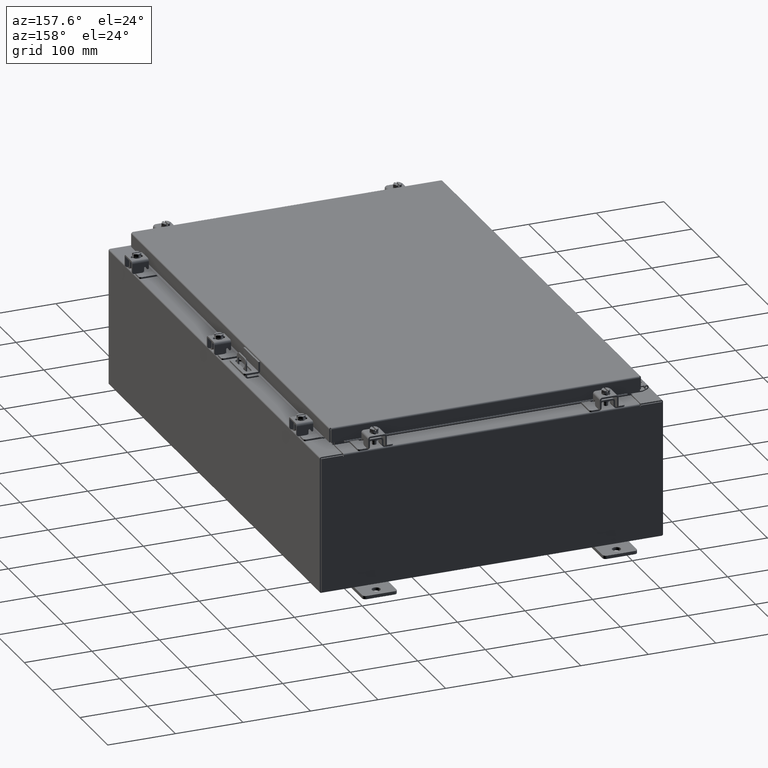
[diagram: clean part render]
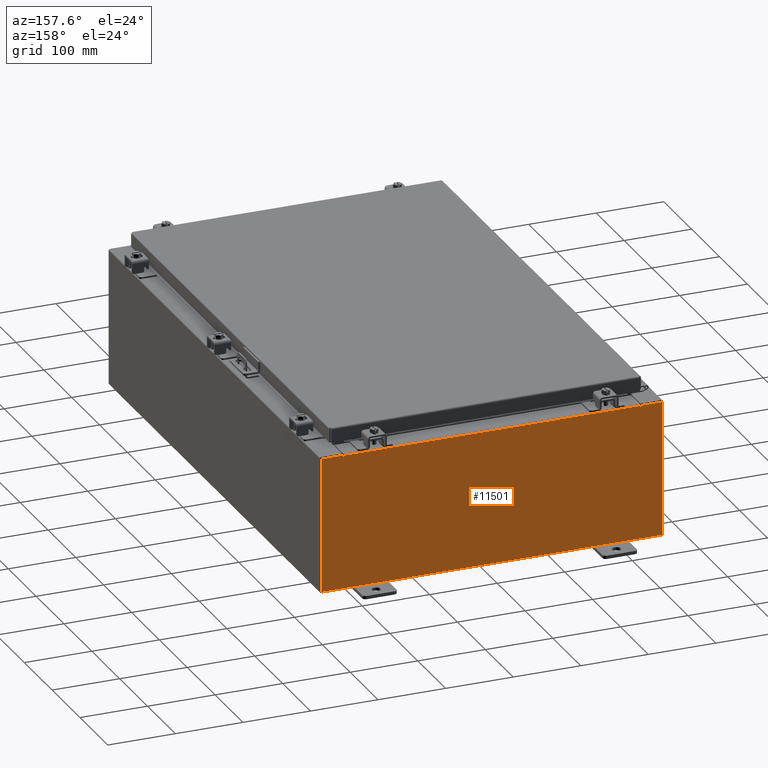
[diagram: same view with one face highlighted and labeled with its STEP entity id]
A machine part, auxiliary view. The second image highlights one B-rep face of the part: STEP entity #11501.
In plain terms, the highlighted planar face has unit normal (0, -1, 0).
Its self-contained STEP definition (entity closure, byte-faithful):
#79 = CARTESIAN_POINT ( 'NONE',  ( -8.674549999999996400, 0.0000000000000000000, 3.925299999999999600 ) ) ;
#361 = CARTESIAN_POINT ( 'NONE',  ( -8.655874999999996400, 0.0000000000000000000, 3.874949999999999700 ) ) ;
#710 = ORIENTED_EDGE ( 'NONE', *, *, #9132, .T. ) ;
#1230 = DIRECTION ( 'NONE',  ( 0.0000000000000000000, -1.000000000000000000, 0.0000000000000000000 ) ) ;
#1837 = DIRECTION ( 'NONE',  ( 0.0000000000000000000, 0.0000000000000000000, -1.000000000000000000 ) ) ;
#2175 = ORIENTED_EDGE ( 'NONE', *, *, #28482, .F. ) ;
#2310 = LINE ( 'NONE', #8712, #31241 ) ;
#2546 = ORIENTED_EDGE ( 'NONE', *, *, #22223, .T. ) ;
#2910 = VERTEX_POINT ( 'NONE', #14391 ) ;
#3136 = DIRECTION ( 'NONE',  ( 1.000000000000000000, 0.0000000000000000000, 0.0000000000000000000 ) ) ;
#3230 = DIRECTION ( 'NONE',  ( 0.0000000000000000000, 0.0000000000000000000, -1.000000000000000000 ) ) ;
#3515 = VERTEX_POINT ( 'NONE', #9946 ) ;
#3540 = EDGE_CURVE ( 'NONE', #3608, #25428, #19019, .T. ) ;
#3608 = VERTEX_POINT ( 'NONE', #6240 ) ;
#3766 = DIRECTION ( 'NONE',  ( 0.0000000000000000000, 0.0000000000000000000, 1.000000000000000000 ) ) ;
#3852 = LINE ( 'NONE', #34155, #33747 ) ;
#3931 = AXIS2_PLACEMENT_3D ( 'NONE', #9650, #1230, #21434 ) ;
#5306 = DIRECTION ( 'NONE',  ( -6.510859170600007400E-014, 0.0000000000000000000, -1.000000000000000000 ) ) ;
#5350 = LINE ( 'NONE', #27259, #12083 ) ;
#6125 = CARTESIAN_POINT ( 'NONE',  ( -9.925300000000000000, 0.0000000000000000000, 3.925299999999999600 ) ) ;
#6240 = CARTESIAN_POINT ( 'NONE',  ( 9.925300000000000000, 0.0000000000000000000, 3.925299999999999600 ) ) ;
#7146 = VERTEX_POINT ( 'NONE', #31454 ) ;
#7269 = LINE ( 'NONE', #21098, #28565 ) ;
#7286 = CARTESIAN_POINT ( 'NONE',  ( -9.925300000000000000, 0.0000000000000000000, 3.925299999999999600 ) ) ;
#8017 = LINE ( 'NONE', #12411, #14817 ) ;
#8228 = AXIS2_PLACEMENT_3D ( 'NONE', #361, #20551, #3230 ) ;
#8444 = CARTESIAN_POINT ( 'NONE',  ( 9.925300000000000000, 0.0000000000000000000, 3.925299999999999600 ) ) ;
#8489 = DIRECTION ( 'NONE',  ( 0.0000000000000000000, 0.0000000000000000000, -1.000000000000000000 ) ) ;
#8712 = CARTESIAN_POINT ( 'NONE',  ( -9.925300000000000000, 0.0000000000000000000, 3.925299999999999600 ) ) ;
#9132 = EDGE_CURVE ( 'NONE', #9999, #33765, #2310, .T. ) ;
#9650 = CARTESIAN_POINT ( 'NONE',  ( 0.0000000000000000000, 0.0000000000000000000, 0.0000000000000000000 ) ) ;
#9792 = ORIENTED_EDGE ( 'NONE', *, *, #18824, .F. ) ;
#9946 = CARTESIAN_POINT ( 'NONE',  ( 8.674550000000000000, 0.0000000000000000000, 3.874949999999999700 ) ) ;
#9999 = VERTEX_POINT ( 'NONE', #36296 ) ;
#10507 = ORIENTED_EDGE ( 'NONE', *, *, #11428, .T. ) ;
#10670 = DIRECTION ( 'NONE',  ( 0.0000000000000000000, 0.0000000000000000000, -1.000000000000000000 ) ) ;
#10844 = ORIENTED_EDGE ( 'NONE', *, *, #11524, .F. ) ;
#11292 = VECTOR ( 'NONE', #8489, 39.37007874015748100 ) ;
#11428 = EDGE_CURVE ( 'NONE', #34795, #3608, #8017, .T. ) ;
#11501 = ADVANCED_FACE ( 'NONE', ( #20720 ), #18484, .F. ) ;
#11524 = EDGE_CURVE ( 'NONE', #7146, #28593, #5350, .T. ) ;
#11599 = DIRECTION ( 'NONE',  ( -0.0000000000000000000, -0.0000000000000000000, 1.000000000000000000 ) ) ;
#12083 = VECTOR ( 'NONE', #33072, 39.37007874015748100 ) ;
#12411 = CARTESIAN_POINT ( 'NONE',  ( -9.925300000000000000, 0.0000000000000000000, 3.925299999999999600 ) ) ;
#12511 = CARTESIAN_POINT ( 'NONE',  ( 8.674550000000001800, 0.0000000000000000000, 3.925299999999999600 ) ) ;
#14391 = CARTESIAN_POINT ( 'NONE',  ( -8.674549999999996400, 0.0000000000000000000, 3.874949999999999700 ) ) ;
#14395 = CIRCLE ( 'NONE', #8228, 0.01867500000000003900 ) ;
#14817 = VECTOR ( 'NONE', #32696, 39.37007874015748100 ) ;
#15216 = EDGE_CURVE ( 'NONE', #3515, #7146, #22328, .T. ) ;
#15781 = VECTOR ( 'NONE', #31062, 39.37007874015748100 ) ;
#16104 = VERTEX_POINT ( 'NONE', #79 ) ;
#16800 = EDGE_CURVE ( 'NONE', #30832, #28593, #17649, .T. ) ;
#16924 = EDGE_CURVE ( 'NONE', #2910, #16104, #7269, .T. ) ;
#16948 = ORIENTED_EDGE ( 'NONE', *, *, #26926, .T. ) ;
#17030 = ORIENTED_EDGE ( 'NONE', *, *, #3540, .T. ) ;
#17649 = LINE ( 'NONE', #20465, #24491 ) ;
#18484 = PLANE ( 'NONE',  #3931 ) ;
#18538 = ORIENTED_EDGE ( 'NONE', *, *, #27904, .F. ) ;
#18824 = EDGE_CURVE ( 'NONE', #30071, #2910, #14395, .T. ) ;
#19019 = LINE ( 'NONE', #8444, #11292 ) ;
#19102 = DIRECTION ( 'NONE',  ( -0.0000000000000000000, 1.000000000000000000, -0.0000000000000000000 ) ) ;
#19277 = VECTOR ( 'NONE', #23438, 39.37007874015748100 ) ;
#20465 = CARTESIAN_POINT ( 'NONE',  ( -8.637200000000000000, 1.024442997624098700E-016, 3.912299999999999700 ) ) ;
#20551 = DIRECTION ( 'NONE',  ( -0.0000000000000000000, 1.000000000000000000, -0.0000000000000000000 ) ) ;
#20720 = FACE_OUTER_BOUND ( 'NONE', #33017, .T. ) ;
#21098 = CARTESIAN_POINT ( 'NONE',  ( -8.674549999999996400, -0.0000000000000000000, 0.0000000000000000000 ) ) ;
#21434 = DIRECTION ( 'NONE',  ( 0.0000000000000000000, -0.0000000000000000000, -1.000000000000000000 ) ) ;
#22223 = EDGE_CURVE ( 'NONE', #25428, #9999, #23455, .T. ) ;
#22328 = CIRCLE ( 'NONE', #35840, 0.01867500000000003900 ) ;
#23150 = ORIENTED_EDGE ( 'NONE', *, *, #16800, .T. ) ;
#23438 = DIRECTION ( 'NONE',  ( 1.000000000000000000, 0.0000000000000000000, 0.0000000000000000000 ) ) ;
#23455 = LINE ( 'NONE', #28174, #15781 ) ;
#24172 = LINE ( 'NONE', #30944, #25078 ) ;
#24491 = VECTOR ( 'NONE', #3136, 39.37007874015748100 ) ;
#25078 = VECTOR ( 'NONE', #10670, 39.37007874015748100 ) ;
#25330 = CARTESIAN_POINT ( 'NONE',  ( 9.925300000000000000, 0.0000000000000000000, -3.925299999999999600 ) ) ;
#25428 = VERTEX_POINT ( 'NONE', #25330 ) ;
#25647 = ORIENTED_EDGE ( 'NONE', *, *, #16924, .F. ) ;
#26077 = LINE ( 'NONE', #6125, #19277 ) ;
#26926 = EDGE_CURVE ( 'NONE', #33765, #16104, #26077, .T. ) ;
#27259 = CARTESIAN_POINT ( 'NONE',  ( 8.637200000000000000, 0.0000000000000000000, 0.0000000000000000000 ) ) ;
#27904 = EDGE_CURVE ( 'NONE', #34795, #3515, #3852, .T. ) ;
#28174 = CARTESIAN_POINT ( 'NONE',  ( -9.925300000000000000, 0.0000000000000000000, -3.925299999999999600 ) ) ;
#28482 = EDGE_CURVE ( 'NONE', #30832, #30071, #24172, .T. ) ;
#28525 = CARTESIAN_POINT ( 'NONE',  ( -8.637199999999996400, -0.0000000000000000000, 3.874949999999999700 ) ) ;
#28565 = VECTOR ( 'NONE', #3766, 39.37007874015748100 ) ;
#28593 = VERTEX_POINT ( 'NONE', #34240 ) ;
#29099 = CARTESIAN_POINT ( 'NONE',  ( -8.637199999999996400, 1.024442997624098700E-016, 3.912299999999999700 ) ) ;
#29974 = ORIENTED_EDGE ( 'NONE', *, *, #15216, .F. ) ;
#30071 = VERTEX_POINT ( 'NONE', #28525 ) ;
#30832 = VERTEX_POINT ( 'NONE', #29099 ) ;
#30944 = CARTESIAN_POINT ( 'NONE',  ( -8.637199999999996400, -0.0000000000000000000, 0.0000000000000000000 ) ) ;
#31062 = DIRECTION ( 'NONE',  ( -1.000000000000000000, -0.0000000000000000000, -0.0000000000000000000 ) ) ;
#31241 = VECTOR ( 'NONE', #11599, 39.37007874015748100 ) ;
#31454 = CARTESIAN_POINT ( 'NONE',  ( 8.637200000000000000, 0.0000000000000000000, 3.874949999999999700 ) ) ;
#32696 = DIRECTION ( 'NONE',  ( 1.000000000000000000, 0.0000000000000000000, 0.0000000000000000000 ) ) ;
#33017 = EDGE_LOOP ( 'NONE', ( #25647, #9792, #2175, #23150, #10844, #29974, #18538, #10507, #17030, #2546, #710, #16948 ) ) ;
#33072 = DIRECTION ( 'NONE',  ( 0.0000000000000000000, 0.0000000000000000000, 1.000000000000000000 ) ) ;
#33747 = VECTOR ( 'NONE', #5306, 39.37007874015748100 ) ;
#33765 = VERTEX_POINT ( 'NONE', #7286 ) ;
#34155 = CARTESIAN_POINT ( 'NONE',  ( 8.674549999999747700, -0.0000000000000000000, -5.647877341832665300E-013 ) ) ;
#34240 = CARTESIAN_POINT ( 'NONE',  ( 8.637200000000000000, 0.0000000000000000000, 3.912299999999999700 ) ) ;
#34795 = VERTEX_POINT ( 'NONE', #12511 ) ;
#35840 = AXIS2_PLACEMENT_3D ( 'NONE', #36481, #19102, #1837 ) ;
#36296 = CARTESIAN_POINT ( 'NONE',  ( -9.925300000000000000, 0.0000000000000000000, -3.925299999999999600 ) ) ;
#36481 = CARTESIAN_POINT ( 'NONE',  ( 8.655875000000000000, 0.0000000000000000000, 3.874949999999999700 ) ) ;